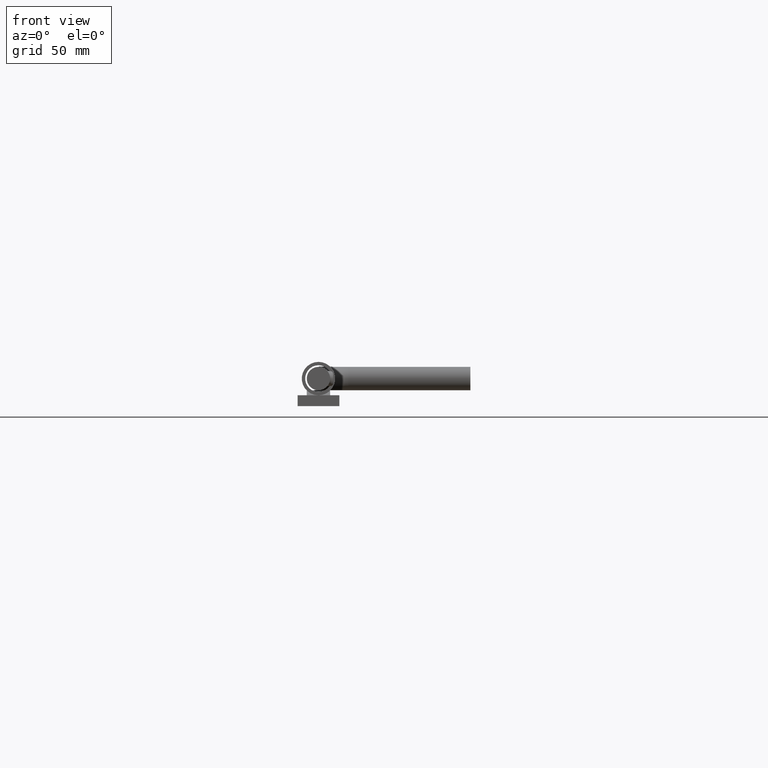
[diagram: clean part render]
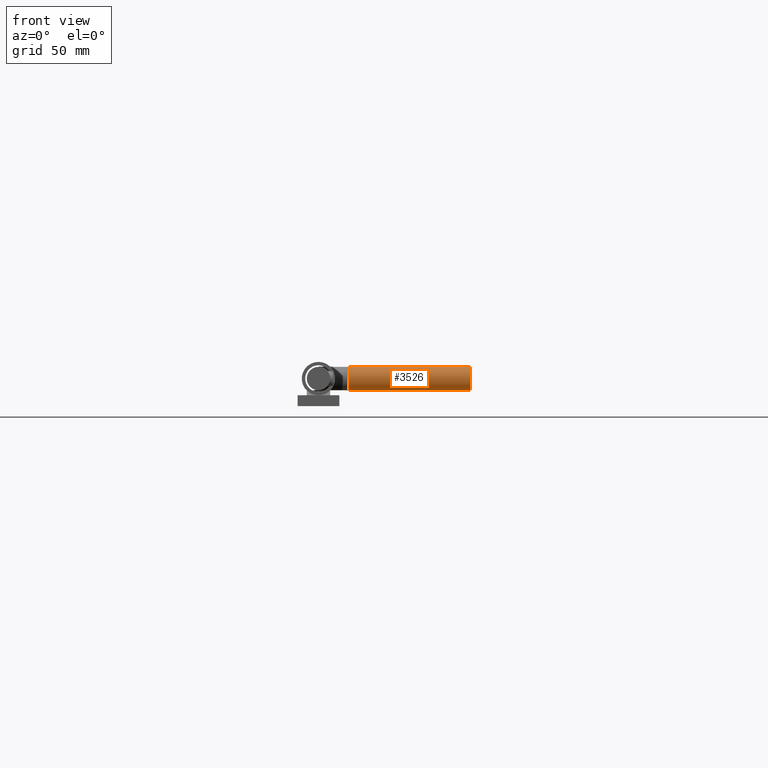
[diagram: same view with one face highlighted and labeled with its STEP entity id]
A machine part, front view. The second image highlights one B-rep face of the part: STEP entity #3526.
In plain terms, the highlighted cylindrical surface (bore or boss wall) has radius 7 mm, axis along (1, -0, 0).
Its self-contained STEP definition (entity closure, byte-faithful):
#794 = CARTESIAN_POINT ( 'NONE',  ( 91.00000000000000000, 217.9999999999999716, 16.50000000000000000 ) ) ;
#1530 = CARTESIAN_POINT ( 'NONE',  ( 91.00000000000000000, 217.9999999999999716, 9.500000000000001776 ) ) ;
#1566 = ORIENTED_EDGE ( 'NONE', *, *, #10157, .T. ) ;
#1604 = EDGE_LOOP ( 'NONE', ( #6041 ) ) ;
#2690 = CARTESIAN_POINT ( 'NONE',  ( 17.99999999999993250, 218.0000000000000000, 16.50000000000000000 ) ) ;
#2779 = DIRECTION ( 'NONE',  ( 1.000000000000000000, -3.802133645976559956E-16, 0.000000000000000000 ) ) ;
#3090 = EDGE_CURVE ( 'NONE', #5156, #5156, #6331, .T. ) ;
#3526 = ADVANCED_FACE ( 'NONE', ( #10834, #5418 ), #4830, .T. ) ;
#4491 = AXIS2_PLACEMENT_3D ( 'NONE', #794, #12360, #7476 ) ;
#4830 = CYLINDRICAL_SURFACE ( 'NONE', #5536, 7.000000000000006217 ) ;
#5156 = VERTEX_POINT ( 'NONE', #9291 ) ;
#5418 = FACE_OUTER_BOUND ( 'NONE', #11648, .T. ) ;
#5536 = AXIS2_PLACEMENT_3D ( 'NONE', #2690, #2779, #7633 ) ;
#6041 = ORIENTED_EDGE ( 'NONE', *, *, #3090, .F. ) ;
#6331 = CIRCLE ( 'NONE', #8832, 6.999999999999999112 ) ;
#7147 = CIRCLE ( 'NONE', #4491, 6.999999999999999112 ) ;
#7281 = VERTEX_POINT ( 'NONE', #1530 ) ;
#7476 = DIRECTION ( 'NONE',  ( 0.000000000000000000, 0.000000000000000000, -1.000000000000000000 ) ) ;
#7633 = DIRECTION ( 'NONE',  ( 4.956352788505158337E-16, 1.000000000000000000, 0.000000000000000000 ) ) ;
#8271 = CARTESIAN_POINT ( 'NONE',  ( 17.99999999999993250, 218.0000000000000000, 16.50000000000000000 ) ) ;
#8832 = AXIS2_PLACEMENT_3D ( 'NONE', #8271, #10145, #12196 ) ;
#9291 = CARTESIAN_POINT ( 'NONE',  ( 17.99999999999993250, 218.0000000000000000, 9.500000000000001776 ) ) ;
#10145 = DIRECTION ( 'NONE',  ( -1.000000000000000000, 1.608122649676636601E-16, 0.000000000000000000 ) ) ;
#10157 = EDGE_CURVE ( 'NONE', #7281, #7281, #7147, .T. ) ;
#10834 = FACE_OUTER_BOUND ( 'NONE', #1604, .T. ) ;
#11648 = EDGE_LOOP ( 'NONE', ( #1566 ) ) ;
#12196 = DIRECTION ( 'NONE',  ( 0.000000000000000000, 0.000000000000000000, -1.000000000000000000 ) ) ;
#12360 = DIRECTION ( 'NONE',  ( -1.000000000000000000, 1.608122649676636601E-16, 0.000000000000000000 ) ) ;